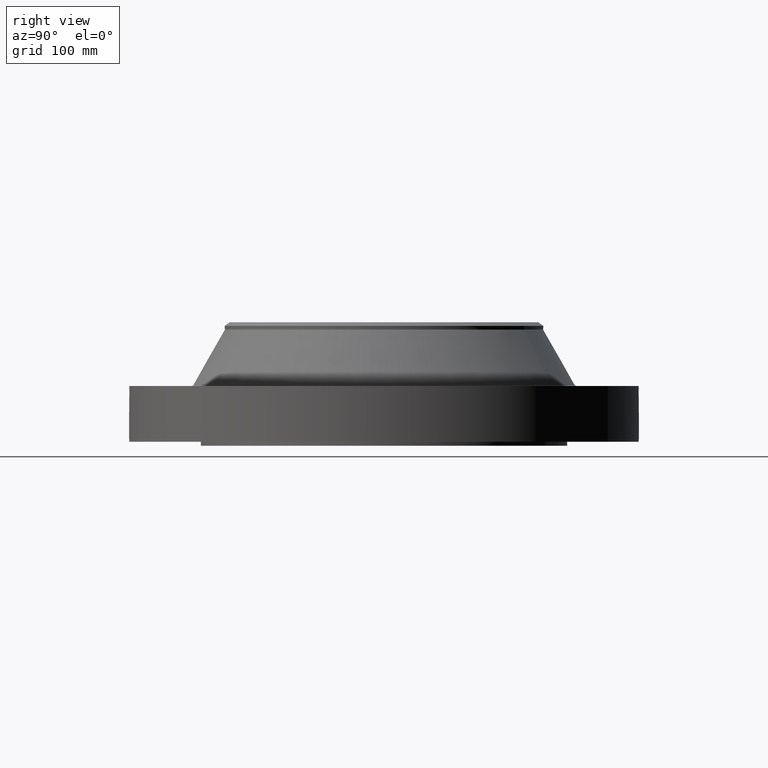
[diagram: clean part render]
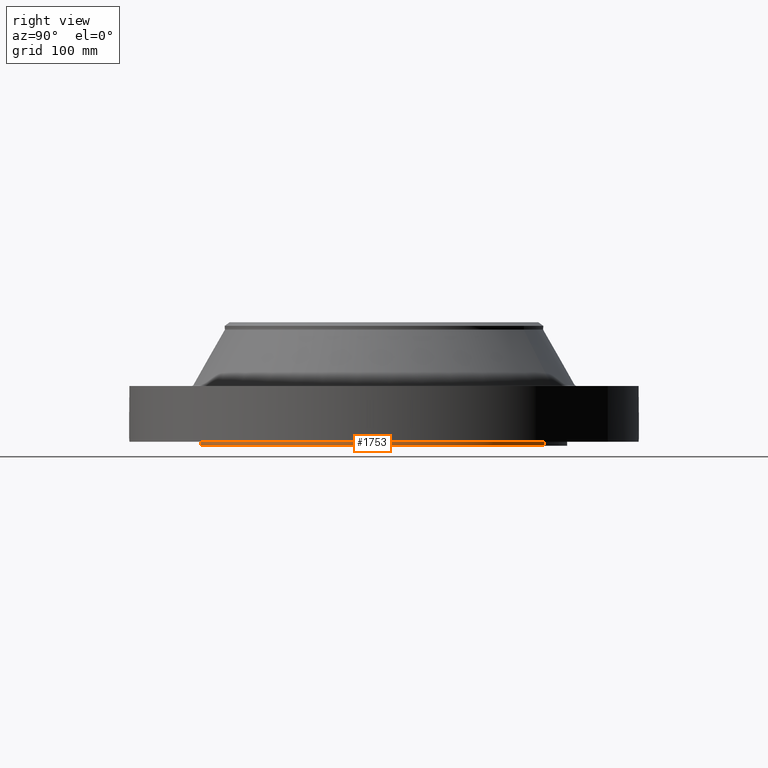
[diagram: same view with one face highlighted and labeled with its STEP entity id]
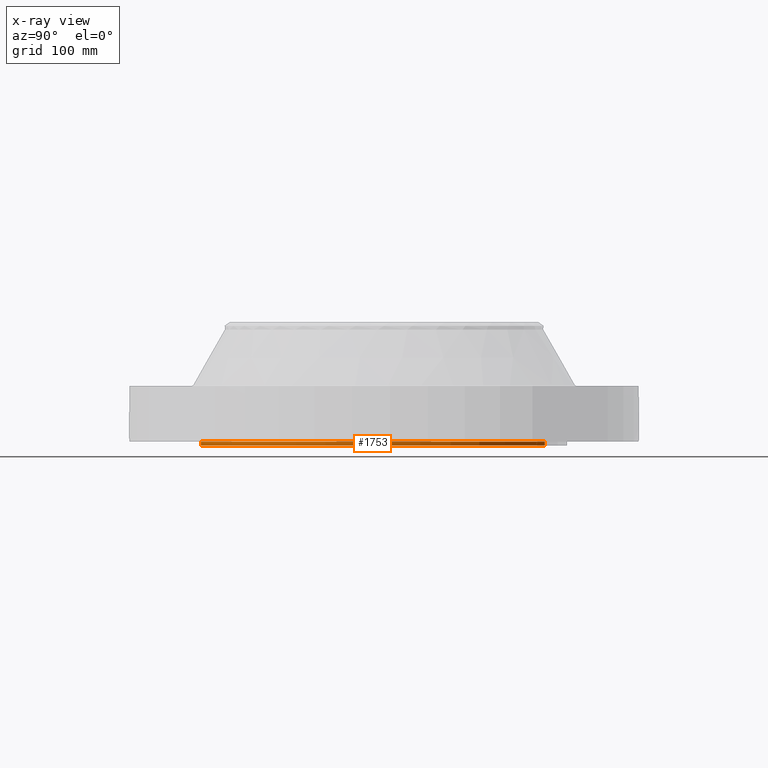
[diagram: x-ray of the same camera — body ghosted, the highlighted face saturated]
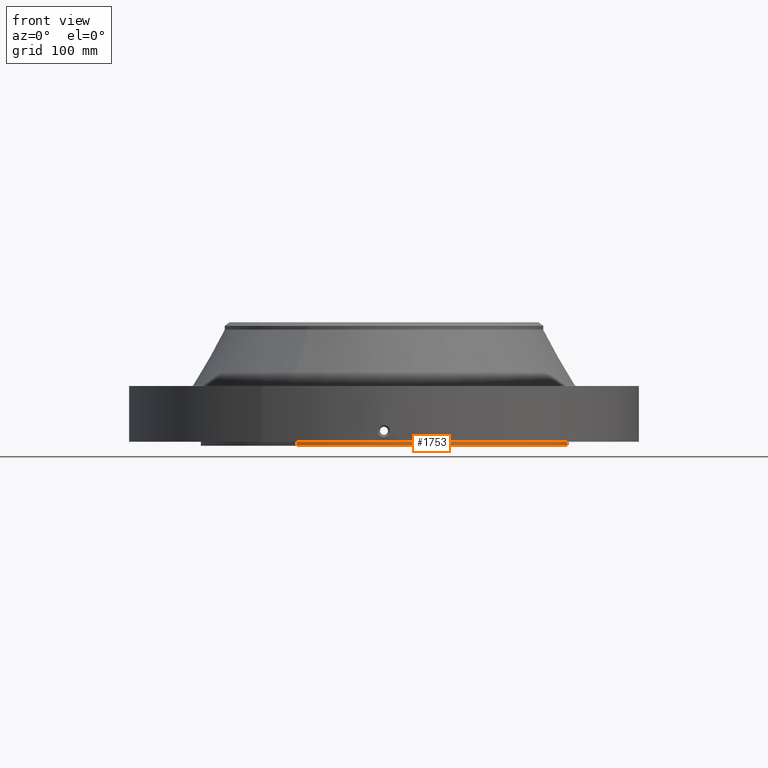
[diagram: same view with one face highlighted and labeled with its STEP entity id]
A machine part, right view. The second image highlights one B-rep face of the part: STEP entity #1753.
The next image is the same camera in x-ray: the body ghosted, the highlighted face saturated — about 0% of this face is hidden behind the body in this view.
A second angle (front view) of the same face is appended — the face is thin or edge-on in the first view.
In plain terms, the highlighted cylindrical surface (partial cylindrical patch) has radius 292.1 mm, axis along (0, 0, -1).
Its self-contained STEP definition (entity closure, byte-faithful):
#254=AXIS2_PLACEMENT_3D('Circle Axis2P3D',#252,#253,$) ;
#1726=AXIS2_PLACEMENT_3D('Cylinder Axis2P3D',#1723,#1724,#1725) ;
#1730=AXIS2_PLACEMENT_3D('Circle Axis2P3D',#1728,#1729,$) ;
#252=CARTESIAN_POINT('Axis2P3D Location',(0.,0.,0.250000000001)) ;
#256=CARTESIAN_POINT('Vertex',(5.51339369397,10.0921994618,0.250000000001)) ;
#258=CARTESIAN_POINT('Vertex',(-5.51339369397,-10.0921994618,0.250000000001)) ;
#1723=CARTESIAN_POINT('Axis2P3D Location',(0.,0.,3.87500000002)) ;
#1728=CARTESIAN_POINT('Axis2P3D Location',(0.,0.,1.1189649382E-015)) ;
#1732=CARTESIAN_POINT('Vertex',(5.51339369397,10.0921994618,1.1189649382E-015)) ;
#1734=CARTESIAN_POINT('Vertex',(-5.51339369397,-10.0921994618,1.1189649382E-015)) ;
#1737=CARTESIAN_POINT('Line Origine',(5.51339369397,10.0921994618,0.125000000001)) ;
#1742=CARTESIAN_POINT('Line Origine',(-5.51339369397,-10.0921994618,0.125000000001)) ;
#253=DIRECTION('Axis2P3D Direction',(0.,0.,-0.0393700787402)) ;
#1724=DIRECTION('Axis2P3D Direction',(0.,0.,-0.0393700787402)) ;
#1725=DIRECTION('Axis2P3D XDirection',(-0.0188750212049,-0.0345504945626,0.)) ;
#1729=DIRECTION('Axis2P3D Direction',(0.,0.,-0.0393700787402)) ;
#1738=DIRECTION('Vector Direction',(0.,0.,-0.0393700787402)) ;
#1743=DIRECTION('Vector Direction',(0.,0.,-0.0393700787402)) ;
#1739=VECTOR('Line Direction',#1738,0.0393700787402) ;
#1744=VECTOR('Line Direction',#1743,0.0393700787402) ;
#1748=ORIENTED_EDGE('',*,*,#1736,.F.) ;
#1749=ORIENTED_EDGE('',*,*,#1741,.T.) ;
#1750=ORIENTED_EDGE('',*,*,#260,.T.) ;
#1751=ORIENTED_EDGE('',*,*,#1746,.F.) ;
#1753=ADVANCED_FACE('PartBody',(#1752),#1727,.T.) ;
#255=CIRCLE('generated circle',#254,11.5) ;
#1731=CIRCLE('generated circle',#1730,11.5) ;
#1727=CYLINDRICAL_SURFACE('generated cylinder',#1726,11.5) ;
#260=EDGE_CURVE('',#257,#259,#255,.T.) ;
#1736=EDGE_CURVE('',#1733,#1735,#1731,.T.) ;
#1741=EDGE_CURVE('',#1733,#257,#1740,.F.) ;
#1746=EDGE_CURVE('',#1735,#259,#1745,.F.) ;
#1747=EDGE_LOOP('',(#1748,#1749,#1750,#1751)) ;
#1752=FACE_OUTER_BOUND('',#1747,.T.) ;
#1740=LINE('Line',#1737,#1739) ;
#1745=LINE('Line',#1742,#1744) ;
#257=VERTEX_POINT('',#256) ;
#259=VERTEX_POINT('',#258) ;
#1733=VERTEX_POINT('',#1732) ;
#1735=VERTEX_POINT('',#1734) ;